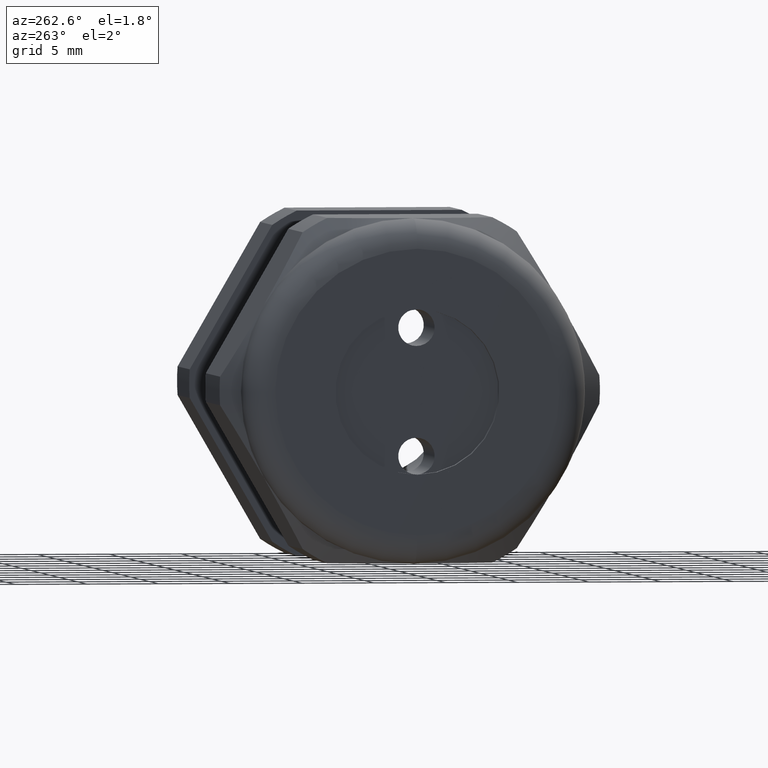
[diagram: clean part render]
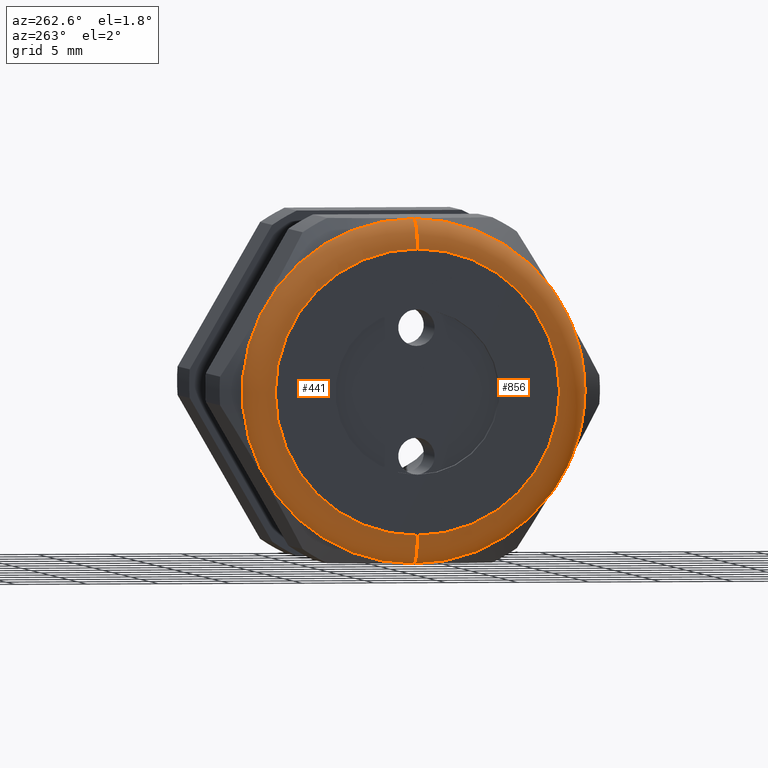
[diagram: same view with one multi-face feature highlighted, each face labeled with its STEP entity id]
A machine part, auxiliary view. The highlighted faces form ONE feature: a constant-radius fillet chain: 2 tangent blend faces with common blend radius 2.032 mm. The faces share edges in the B-rep.
Their STEP definitions:
[1] entity #856 (Torus):
#423 = VERTEX_POINT ( 'NONE', #1953 ) ;
#425 = EDGE_CURVE ( 'NONE', #446, #423, #1951, .T. ) ;
#445 = VERTEX_POINT ( 'NONE', #1973 ) ;
#446 = VERTEX_POINT ( 'NONE', #1972 ) ;
#448 = EDGE_CURVE ( 'NONE', #445, #449, #1971, .T. ) ;
#449 = VERTEX_POINT ( 'NONE', #1966 ) ;
#708 = EDGE_CURVE ( 'NONE', #449, #423, #2419, .T. ) ;
#721 = EDGE_CURVE ( 'NONE', #446, #445, #2459, .T. ) ;
#856 = ADVANCED_FACE ( 'NONE', ( #2639 ), #2638, .T. ) ;
#857 = EDGE_LOOP ( 'NONE', ( #858, #859, #860, #861 ) ) ;
#858 = ORIENTED_EDGE ( 'NONE', *, *, #448, .F. ) ;
#859 = ORIENTED_EDGE ( 'NONE', *, *, #721, .F. ) ;
#860 = ORIENTED_EDGE ( 'NONE', *, *, #425, .T. ) ;
#861 = ORIENTED_EDGE ( 'NONE', *, *, #708, .F. ) ;
#1947 = DIRECTION ( 'NONE',  ( 0.0000000000000000000, 0.0000000000000000000, -1.000000000000000000 ) ) ;
#1948 = DIRECTION ( 'NONE',  ( 0.0000000000000000000, -1.000000000000000000, 0.0000000000000000000 ) ) ;
#1949 = CARTESIAN_POINT ( 'NONE',  ( -1.290000000000000300, 0.0000000000000000000, 0.3899999999999999600 ) ) ;
#1950 = AXIS2_PLACEMENT_3D ( 'NONE', #1949, #1948, #1947 ) ;
#1951 = CIRCLE ( 'NONE', #1950, 0.07999999999999996000 ) ;
#1953 = CARTESIAN_POINT ( 'NONE',  ( -1.370000000000000100, 0.0000000000000000000, 0.3899999999999999600 ) ) ;
#1966 = CARTESIAN_POINT ( 'NONE',  ( -1.370000000000000100, 5.265981236333617600E-017, -0.3899999999999999600 ) ) ;
#1967 = DIRECTION ( 'NONE',  ( 0.0000000000000000000, -1.224646799147353900E-016, 1.000000000000000000 ) ) ;
#1968 = DIRECTION ( 'NONE',  ( 0.0000000000000000000, 1.000000000000000000, 1.224646799147353200E-016 ) ) ;
#1969 = CARTESIAN_POINT ( 'NONE',  ( -1.290000000000000300, 4.776122516674676800E-017, -0.3899999999999999600 ) ) ;
#1970 = AXIS2_PLACEMENT_3D ( 'NONE', #1969, #1968, #1967 ) ;
#1971 = CIRCLE ( 'NONE', #1970, 0.07999999999999996000 ) ;
#1972 = CARTESIAN_POINT ( 'NONE',  ( -1.290000000000000300, 5.755839955992558400E-017, 0.4699999999999999200 ) ) ;
#1973 = CARTESIAN_POINT ( 'NONE',  ( -1.290000000000000300, 0.0000000000000000000, -0.4699999999999999200 ) ) ;
#2415 = DIRECTION ( 'NONE',  ( 0.0000000000000000000, 0.0000000000000000000, 1.000000000000000000 ) ) ;
#2416 = DIRECTION ( 'NONE',  ( -1.000000000000000000, 0.0000000000000000000, 0.0000000000000000000 ) ) ;
#2417 = CARTESIAN_POINT ( 'NONE',  ( -1.370000000000000100, 0.0000000000000000000, 0.0000000000000000000 ) ) ;
#2418 = AXIS2_PLACEMENT_3D ( 'NONE', #2417, #2416, #2415 ) ;
#2419 = CIRCLE ( 'NONE', #2418, 0.3899999999999999600 ) ;
#2451 = DIRECTION ( 'NONE',  ( 0.0000000000000000000, 0.0000000000000000000, 1.000000000000000000 ) ) ;
#2452 = DIRECTION ( 'NONE',  ( 1.000000000000000000, 0.0000000000000000000, 0.0000000000000000000 ) ) ;
#2453 = CARTESIAN_POINT ( 'NONE',  ( -1.290000000000000300, 0.0000000000000000000, 0.0000000000000000000 ) ) ;
#2454 = AXIS2_PLACEMENT_3D ( 'NONE', #2453, #2452, #2451 ) ;
#2459 = CIRCLE ( 'NONE', #2454, 0.4699999999999999200 ) ;
#2635 = DIRECTION ( 'NONE',  ( 0.0000000000000000000, 0.0000000000000000000, 1.000000000000000000 ) ) ;
#2636 = DIRECTION ( 'NONE',  ( -1.000000000000000000, 0.0000000000000000000, 0.0000000000000000000 ) ) ;
#2637 = AXIS2_PLACEMENT_3D ( 'NONE', #2645, #2636, #2635 ) ;
#2638 = TOROIDAL_SURFACE ( 'NONE', #2637, 0.3899999999999999600, 0.08000000000000000200 ) ;
#2639 = FACE_OUTER_BOUND ( 'NONE', #857, .T. ) ;
#2645 = CARTESIAN_POINT ( 'NONE',  ( -1.290000000000000300, 0.0000000000000000000, 0.0000000000000000000 ) ) ;
[2] entity #441 (Torus):
#421 = ORIENTED_EDGE ( 'NONE', *, *, #422, .F. ) ;
#422 = EDGE_CURVE ( 'NONE', #423, #449, #1958, .T. ) ;
#423 = VERTEX_POINT ( 'NONE', #1953 ) ;
#424 = ORIENTED_EDGE ( 'NONE', *, *, #425, .F. ) ;
#425 = EDGE_CURVE ( 'NONE', #446, #423, #1951, .T. ) ;
#441 = ADVANCED_FACE ( 'NONE', ( #1984 ), #1983, .T. ) ;
#442 = EDGE_LOOP ( 'NONE', ( #443, #447, #421, #424 ) ) ;
#443 = ORIENTED_EDGE ( 'NONE', *, *, #444, .F. ) ;
#444 = EDGE_CURVE ( 'NONE', #445, #446, #1977, .T. ) ;
#445 = VERTEX_POINT ( 'NONE', #1973 ) ;
#446 = VERTEX_POINT ( 'NONE', #1972 ) ;
#447 = ORIENTED_EDGE ( 'NONE', *, *, #448, .T. ) ;
#448 = EDGE_CURVE ( 'NONE', #445, #449, #1971, .T. ) ;
#449 = VERTEX_POINT ( 'NONE', #1966 ) ;
#1947 = DIRECTION ( 'NONE',  ( 0.0000000000000000000, 0.0000000000000000000, -1.000000000000000000 ) ) ;
#1948 = DIRECTION ( 'NONE',  ( 0.0000000000000000000, -1.000000000000000000, 0.0000000000000000000 ) ) ;
#1949 = CARTESIAN_POINT ( 'NONE',  ( -1.290000000000000300, 0.0000000000000000000, 0.3899999999999999600 ) ) ;
#1950 = AXIS2_PLACEMENT_3D ( 'NONE', #1949, #1948, #1947 ) ;
#1951 = CIRCLE ( 'NONE', #1950, 0.07999999999999996000 ) ;
#1953 = CARTESIAN_POINT ( 'NONE',  ( -1.370000000000000100, 0.0000000000000000000, 0.3899999999999999600 ) ) ;
#1954 = DIRECTION ( 'NONE',  ( 0.0000000000000000000, 0.0000000000000000000, 1.000000000000000000 ) ) ;
#1955 = DIRECTION ( 'NONE',  ( -1.000000000000000000, 0.0000000000000000000, 0.0000000000000000000 ) ) ;
#1956 = CARTESIAN_POINT ( 'NONE',  ( -1.370000000000000100, 0.0000000000000000000, 0.0000000000000000000 ) ) ;
#1957 = AXIS2_PLACEMENT_3D ( 'NONE', #1956, #1955, #1954 ) ;
#1958 = CIRCLE ( 'NONE', #1957, 0.3899999999999999600 ) ;
#1966 = CARTESIAN_POINT ( 'NONE',  ( -1.370000000000000100, 5.265981236333617600E-017, -0.3899999999999999600 ) ) ;
#1967 = DIRECTION ( 'NONE',  ( 0.0000000000000000000, -1.224646799147353900E-016, 1.000000000000000000 ) ) ;
#1968 = DIRECTION ( 'NONE',  ( 0.0000000000000000000, 1.000000000000000000, 1.224646799147353200E-016 ) ) ;
#1969 = CARTESIAN_POINT ( 'NONE',  ( -1.290000000000000300, 4.776122516674676800E-017, -0.3899999999999999600 ) ) ;
#1970 = AXIS2_PLACEMENT_3D ( 'NONE', #1969, #1968, #1967 ) ;
#1971 = CIRCLE ( 'NONE', #1970, 0.07999999999999996000 ) ;
#1972 = CARTESIAN_POINT ( 'NONE',  ( -1.290000000000000300, 5.755839955992558400E-017, 0.4699999999999999200 ) ) ;
#1973 = CARTESIAN_POINT ( 'NONE',  ( -1.290000000000000300, 0.0000000000000000000, -0.4699999999999999200 ) ) ;
#1974 = DIRECTION ( 'NONE',  ( 0.0000000000000000000, 0.0000000000000000000, 1.000000000000000000 ) ) ;
#1975 = DIRECTION ( 'NONE',  ( 1.000000000000000000, 0.0000000000000000000, 0.0000000000000000000 ) ) ;
#1976 = AXIS2_PLACEMENT_3D ( 'NONE', #1982, #1975, #1974 ) ;
#1977 = CIRCLE ( 'NONE', #1976, 0.4699999999999999200 ) ;
#1978 = DIRECTION ( 'NONE',  ( 0.0000000000000000000, 0.0000000000000000000, 1.000000000000000000 ) ) ;
#1979 = DIRECTION ( 'NONE',  ( -1.000000000000000000, 0.0000000000000000000, 0.0000000000000000000 ) ) ;
#1980 = CARTESIAN_POINT ( 'NONE',  ( -1.290000000000000300, 0.0000000000000000000, 0.0000000000000000000 ) ) ;
#1981 = AXIS2_PLACEMENT_3D ( 'NONE', #1980, #1979, #1978 ) ;
#1982 = CARTESIAN_POINT ( 'NONE',  ( -1.290000000000000300, 0.0000000000000000000, 0.0000000000000000000 ) ) ;
#1983 = TOROIDAL_SURFACE ( 'NONE', #1981, 0.3899999999999999600, 0.08000000000000000200 ) ;
#1984 = FACE_OUTER_BOUND ( 'NONE', #442, .T. ) ;